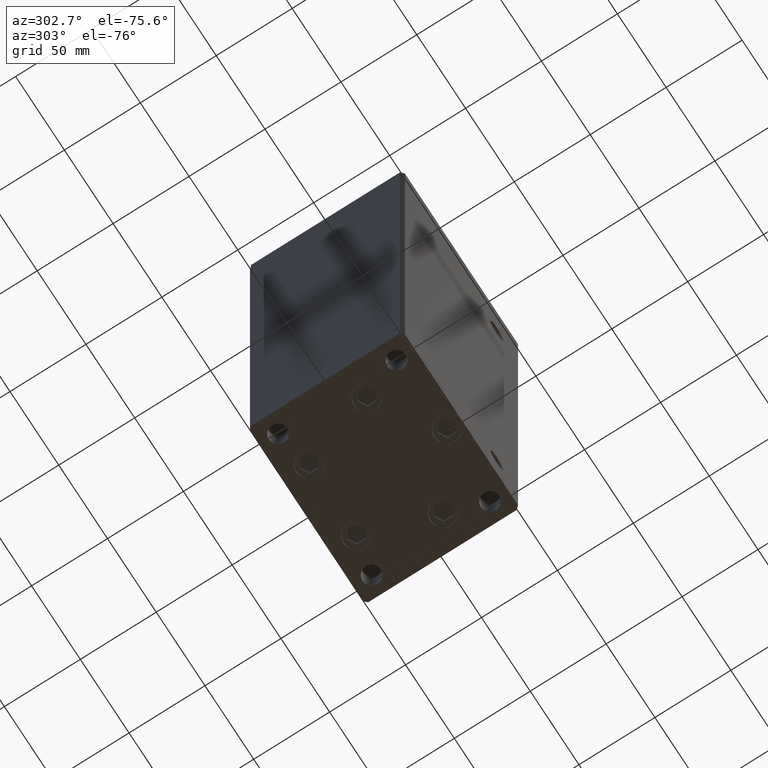
[diagram: clean part render]
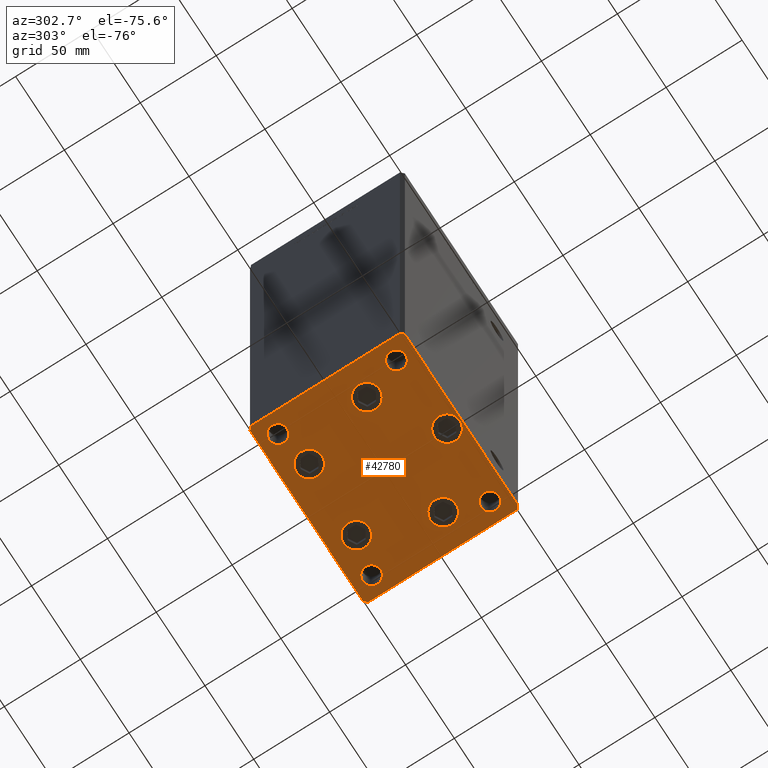
[diagram: same view with one face highlighted and labeled with its STEP entity id]
A machine part, auxiliary view. The second image highlights one B-rep face of the part: STEP entity #42780.
In plain terms, the highlighted planar face has unit normal (0, 0, -1).
Its self-contained STEP definition (entity closure, byte-faithful):
#94 = DIRECTION ( 'NONE',  ( 1.000000000000000000, 0.000000000000000000, 0.000000000000000000 ) ) ;
#144 = DIRECTION ( 'NONE',  ( 1.000000000000000000, 0.000000000000000000, 0.000000000000000000 ) ) ;
#242 = LINE ( 'NONE', #23968, #33316 ) ;
#613 = FACE_BOUND ( 'NONE', #49933, .T. ) ;
#821 = EDGE_CURVE ( 'NONE', #7203, #12091, #4376, .T. ) ;
#946 = EDGE_LOOP ( 'NONE', ( #30106, #27757 ) ) ;
#1083 = EDGE_CURVE ( 'NONE', #36989, #16783, #38334, .T. ) ;
#1563 = AXIS2_PLACEMENT_3D ( 'NONE', #32510, #11959, #37238 ) ;
#1606 = EDGE_CURVE ( 'NONE', #2000, #35267, #38763, .T. ) ;
#1685 = ORIENTED_EDGE ( 'NONE', *, *, #20464, .T. ) ;
#1954 = AXIS2_PLACEMENT_3D ( 'NONE', #4406, #20764, #45001 ) ;
#2000 = VERTEX_POINT ( 'NONE', #33048 ) ;
#2300 = DIRECTION ( 'NONE',  ( 1.000000000000000000, 0.000000000000000000, 0.000000000000000000 ) ) ;
#2529 = EDGE_LOOP ( 'NONE', ( #5873, #36557 ) ) ;
#2632 = DIRECTION ( 'NONE',  ( 0.000000000000000000, -0.000000000000000000, -1.000000000000000000 ) ) ;
#2794 = VERTEX_POINT ( 'NONE', #15508 ) ;
#2953 = EDGE_CURVE ( 'NONE', #16673, #2000, #242, .T. ) ;
#3067 = CARTESIAN_POINT ( 'NONE',  ( 15.69288941894910927, 33.71875000000000711, 0.000000000000000000 ) ) ;
#3167 = CIRCLE ( 'NONE', #49465, 8.500000000000000000 ) ;
#3388 = EDGE_LOOP ( 'NONE', ( #15132, #15224 ) ) ;
#3528 = VERTEX_POINT ( 'NONE', #45167 ) ;
#4087 = CARTESIAN_POINT ( 'NONE',  ( -24.19288941894912170, 33.71875000000000000, 0.000000000000000000 ) ) ;
#4376 = LINE ( 'NONE', #47905, #32451 ) ;
#4406 = CARTESIAN_POINT ( 'NONE',  ( 48.00000000000000000, -38.99999999999999289, 0.000000000000000000 ) ) ;
#4553 = FACE_BOUND ( 'NONE', #24349, .T. ) ;
#4941 = CARTESIAN_POINT ( 'NONE',  ( 60.00000000000001421, -48.99999999999999289, 0.000000000000000000 ) ) ;
#5091 = ORIENTED_EDGE ( 'NONE', *, *, #18093, .T. ) ;
#5162 = EDGE_CURVE ( 'NONE', #32175, #3528, #14898, .T. ) ;
#5488 = CIRCLE ( 'NONE', #51815, 8.500000000000000000 ) ;
#5800 = CARTESIAN_POINT ( 'NONE',  ( -30.62657522565562829, -13.83333333333333748, 0.000000000000000000 ) ) ;
#5873 = ORIENTED_EDGE ( 'NONE', *, *, #31709, .T. ) ;
#6146 = DIRECTION ( 'NONE',  ( 0.000000000000000000, -0.000000000000000000, -1.000000000000000000 ) ) ;
#6353 = AXIS2_PLACEMENT_3D ( 'NONE', #13253, #20395, #94 ) ;
#6429 = LINE ( 'NONE', #26469, #35034 ) ;
#6457 = VERTEX_POINT ( 'NONE', #5800 ) ;
#6487 = DIRECTION ( 'NONE',  ( -0.7071067811865451302, -0.7071067811865500152, 0.000000000000000000 ) ) ;
#6583 = CARTESIAN_POINT ( 'NONE',  ( 47.62657522565562118, -13.83333333333332682, 0.000000000000000000 ) ) ;
#6837 = LINE ( 'NONE', #51114, #46201 ) ;
#7203 = VERTEX_POINT ( 'NONE', #32706 ) ;
#7640 = LINE ( 'NONE', #23719, #37068 ) ;
#8053 = DIRECTION ( 'NONE',  ( 0.000000000000000000, -0.000000000000000000, -1.000000000000000000 ) ) ;
#8071 = ORIENTED_EDGE ( 'NONE', *, *, #41163, .T. ) ;
#8150 = EDGE_CURVE ( 'NONE', #43732, #48338, #19201, .T. ) ;
#8251 = ORIENTED_EDGE ( 'NONE', *, *, #821, .T. ) ;
#8264 = CIRCLE ( 'NONE', #29285, 8.499999999999992895 ) ;
#8270 = AXIS2_PLACEMENT_3D ( 'NONE', #14421, #38662, #34178 ) ;
#8562 = CARTESIAN_POINT ( 'NONE',  ( -57.99999999999999289, 50.99999999999997868, 0.000000000000000000 ) ) ;
#8586 = CARTESIAN_POINT ( 'NONE',  ( 41.99999999999999289, -38.99999999999999289, 0.000000000000000000 ) ) ;
#8843 = DIRECTION ( 'NONE',  ( 1.000000000000000000, 0.000000000000000000, 0.000000000000000000 ) ) ;
#8846 = ORIENTED_EDGE ( 'NONE', *, *, #5162, .T. ) ;
#8967 = EDGE_CURVE ( 'NONE', #29447, #10231, #50372, .T. ) ;
#9168 = CIRCLE ( 'NONE', #45363, 6.000000000000005329 ) ;
#9315 = AXIS2_PLACEMENT_3D ( 'NONE', #47584, #11455, #22288 ) ;
#9582 = DIRECTION ( 'NONE',  ( 1.000000000000000000, 0.000000000000000000, 0.000000000000000000 ) ) ;
#10167 = EDGE_CURVE ( 'NONE', #37859, #10267, #15053, .T. ) ;
#10180 = CARTESIAN_POINT ( 'NONE',  ( -41.99999999999999289, 39.00000000000000000, 0.000000000000000000 ) ) ;
#10231 = VERTEX_POINT ( 'NONE', #16451 ) ;
#10267 = VERTEX_POINT ( 'NONE', #48334 ) ;
#10856 = AXIS2_PLACEMENT_3D ( 'NONE', #51062, #46854, #2300 ) ;
#11139 = DIRECTION ( 'NONE',  ( 1.000000000000000000, 0.000000000000000000, 0.000000000000000000 ) ) ;
#11183 = ORIENTED_EDGE ( 'NONE', *, *, #23331, .T. ) ;
#11455 = DIRECTION ( 'NONE',  ( -0.000000000000000000, 0.000000000000000000, 1.000000000000000000 ) ) ;
#11461 = EDGE_CURVE ( 'NONE', #35605, #45401, #3167, .T. ) ;
#11543 = DIRECTION ( 'NONE',  ( 1.000000000000000000, 0.000000000000000000, 0.000000000000000000 ) ) ;
#11622 = ORIENTED_EDGE ( 'NONE', *, *, #21176, .F. ) ;
#11841 = EDGE_CURVE ( 'NONE', #40612, #7203, #33526, .T. ) ;
#11959 = DIRECTION ( 'NONE',  ( 0.000000000000000000, -0.000000000000000000, -1.000000000000000000 ) ) ;
#12091 = VERTEX_POINT ( 'NONE', #28735 ) ;
#12337 = ORIENTED_EDGE ( 'NONE', *, *, #14739, .T. ) ;
#12745 = EDGE_CURVE ( 'NONE', #3528, #32175, #8264, .T. ) ;
#12768 = VERTEX_POINT ( 'NONE', #8586 ) ;
#12904 = AXIS2_PLACEMENT_3D ( 'NONE', #29973, #34453, #42109 ) ;
#12990 = FACE_OUTER_BOUND ( 'NONE', #43121, .T. ) ;
#13187 = CARTESIAN_POINT ( 'NONE',  ( -48.00000000000000000, 39.00000000000000000, 0.000000000000000000 ) ) ;
#13253 = CARTESIAN_POINT ( 'NONE',  ( 0.000000000000000000, 0.000000000000000000, 0.000000000000000000 ) ) ;
#13279 = CARTESIAN_POINT ( 'NONE',  ( 8.500000000000005329, -41.50000000000000000, 0.000000000000000000 ) ) ;
#13838 = CARTESIAN_POINT ( 'NONE',  ( 39.12657522565562829, -13.83333333333332860, 0.000000000000000000 ) ) ;
#13974 = DIRECTION ( 'NONE',  ( -0.000000000000000000, 0.000000000000000000, 1.000000000000000000 ) ) ;
#14295 = DIRECTION ( 'NONE',  ( -7.080503983578803823E-16, 1.000000000000000000, 0.000000000000000000 ) ) ;
#14421 = CARTESIAN_POINT ( 'NONE',  ( 48.00000000000000000, 38.99999999999999289, 0.000000000000000000 ) ) ;
#14694 = EDGE_CURVE ( 'NONE', #29206, #43205, #26825, .T. ) ;
#14739 = EDGE_CURVE ( 'NONE', #12091, #22608, #6837, .T. ) ;
#14898 = CIRCLE ( 'NONE', #15743, 8.499999999999992895 ) ;
#15053 = CIRCLE ( 'NONE', #1563, 6.000000000000005329 ) ;
#15132 = ORIENTED_EDGE ( 'NONE', *, *, #8967, .F. ) ;
#15224 = ORIENTED_EDGE ( 'NONE', *, *, #49324, .F. ) ;
#15508 = CARTESIAN_POINT ( 'NONE',  ( 54.00000000000000711, -38.99999999999999289, 0.000000000000000000 ) ) ;
#15522 = CARTESIAN_POINT ( 'NONE',  ( -39.12657522565562829, -13.83333333333333925, 0.000000000000000000 ) ) ;
#15652 = DIRECTION ( 'NONE',  ( 0.000000000000000000, -0.000000000000000000, -1.000000000000000000 ) ) ;
#15721 = EDGE_CURVE ( 'NONE', #12768, #2794, #9168, .T. ) ;
#15743 = AXIS2_PLACEMENT_3D ( 'NONE', #30654, #38831, #11139 ) ;
#15916 = DIRECTION ( 'NONE',  ( 1.000000000000000000, 0.000000000000000000, 0.000000000000000000 ) ) ;
#16027 = EDGE_CURVE ( 'NONE', #10267, #37859, #19318, .T. ) ;
#16451 = CARTESIAN_POINT ( 'NONE',  ( 41.99999999999999289, 38.99999999999999289, 0.000000000000000000 ) ) ;
#16463 = DIRECTION ( 'NONE',  ( 1.000000000000000000, 0.000000000000000000, 0.000000000000000000 ) ) ;
#16668 = CARTESIAN_POINT ( 'NONE',  ( -57.99999999999997868, -51.00000000000001421, 0.000000000000000000 ) ) ;
#16673 = VERTEX_POINT ( 'NONE', #18658 ) ;
#16710 = FACE_BOUND ( 'NONE', #33025, .T. ) ;
#16783 = VERTEX_POINT ( 'NONE', #50269 ) ;
#17050 = EDGE_LOOP ( 'NONE', ( #31271, #20878 ) ) ;
#17855 = ORIENTED_EDGE ( 'NONE', *, *, #44393, .T. ) ;
#17944 = CIRCLE ( 'NONE', #1954, 6.000000000000005329 ) ;
#18093 = EDGE_CURVE ( 'NONE', #16783, #36989, #42096, .T. ) ;
#18403 = AXIS2_PLACEMENT_3D ( 'NONE', #13187, #13974, #33996 ) ;
#18658 = CARTESIAN_POINT ( 'NONE',  ( -60.00000000000000000, 48.99999999999995737, 0.000000000000000000 ) ) ;
#18732 = DIRECTION ( 'NONE',  ( 1.000000000000000000, 0.000000000000000000, 0.000000000000000000 ) ) ;
#19021 = VECTOR ( 'NONE', #6487, 1000.000000000000114 ) ;
#19094 = DIRECTION ( 'NONE',  ( 1.000000000000000000, 1.196361017915039486E-16, 0.000000000000000000 ) ) ;
#19201 = CIRCLE ( 'NONE', #45251, 8.500000000000000000 ) ;
#19318 = CIRCLE ( 'NONE', #10856, 6.000000000000005329 ) ;
#19728 = EDGE_LOOP ( 'NONE', ( #44627, #8071 ) ) ;
#19992 = DIRECTION ( 'NONE',  ( 0.000000000000000000, -0.000000000000000000, -1.000000000000000000 ) ) ;
#20284 = DIRECTION ( 'NONE',  ( 0.000000000000000000, -1.000000000000000000, 0.000000000000000000 ) ) ;
#20395 = DIRECTION ( 'NONE',  ( -0.000000000000000000, 0.000000000000000000, 1.000000000000000000 ) ) ;
#20464 = EDGE_CURVE ( 'NONE', #33352, #40612, #7640, .T. ) ;
#20764 = DIRECTION ( 'NONE',  ( 0.000000000000000000, -0.000000000000000000, -1.000000000000000000 ) ) ;
#20878 = ORIENTED_EDGE ( 'NONE', *, *, #15721, .T. ) ;
#21176 = EDGE_CURVE ( 'NONE', #43205, #29206, #36240, .T. ) ;
#21274 = DIRECTION ( 'NONE',  ( 1.000000000000000000, 0.000000000000000000, 0.000000000000000000 ) ) ;
#22288 = DIRECTION ( 'NONE',  ( 1.000000000000000000, 0.000000000000000000, 0.000000000000000000 ) ) ;
#22608 = VERTEX_POINT ( 'NONE', #8562 ) ;
#22647 = DIRECTION ( 'NONE',  ( 1.000000000000000000, 0.000000000000000000, 0.000000000000000000 ) ) ;
#22903 = CARTESIAN_POINT ( 'NONE',  ( -24.19288941894912170, 33.71875000000000000, 0.000000000000000000 ) ) ;
#23331 = EDGE_CURVE ( 'NONE', #45401, #35605, #43041, .T. ) ;
#23399 = VECTOR ( 'NONE', #14295, 1000.000000000000000 ) ;
#23719 = CARTESIAN_POINT ( 'NONE',  ( 58.00000000000000000, -51.00000000000000711, 0.000000000000000000 ) ) ;
#23968 = CARTESIAN_POINT ( 'NONE',  ( -60.00000000000000000, 48.99999999999995737, 0.000000000000000000 ) ) ;
#24349 = EDGE_LOOP ( 'NONE', ( #39655, #8846 ) ) ;
#24409 = AXIS2_PLACEMENT_3D ( 'NONE', #49124, #44902, #32514 ) ;
#24428 = DIRECTION ( 'NONE',  ( -0.7071067811865487940, 0.7071067811865463515, 0.000000000000000000 ) ) ;
#24861 = FACE_BOUND ( 'NONE', #2529, .T. ) ;
#25230 = CARTESIAN_POINT ( 'NONE',  ( 48.00000000000000000, 38.99999999999999289, 0.000000000000000000 ) ) ;
#25407 = ORIENTED_EDGE ( 'NONE', *, *, #43267, .T. ) ;
#25817 = CARTESIAN_POINT ( 'NONE',  ( -54.00000000000000711, 39.00000000000000000, 0.000000000000000000 ) ) ;
#26116 = DIRECTION ( 'NONE',  ( 0.7071067811865474617, -0.7071067811865474617, 0.000000000000000000 ) ) ;
#26267 = LINE ( 'NONE', #29692, #19021 ) ;
#26333 = CARTESIAN_POINT ( 'NONE',  ( 32.69288941894911460, 33.71875000000000711, 0.000000000000000000 ) ) ;
#26469 = CARTESIAN_POINT ( 'NONE',  ( -57.99999999999997868, -51.00000000000001421, 0.000000000000000000 ) ) ;
#26825 = CIRCLE ( 'NONE', #18403, 6.000000000000005329 ) ;
#27757 = ORIENTED_EDGE ( 'NONE', *, *, #10167, .T. ) ;
#27887 = CARTESIAN_POINT ( 'NONE',  ( -47.62657522565562829, -13.83333333333333925, 0.000000000000000000 ) ) ;
#28735 = CARTESIAN_POINT ( 'NONE',  ( 57.99999999999993605, 51.00000000000000711, 0.000000000000000000 ) ) ;
#29206 = VERTEX_POINT ( 'NONE', #25817 ) ;
#29285 = AXIS2_PLACEMENT_3D ( 'NONE', #13838, #45215, #8843 ) ;
#29447 = VERTEX_POINT ( 'NONE', #37027 ) ;
#29604 = ORIENTED_EDGE ( 'NONE', *, *, #14694, .F. ) ;
#29692 = CARTESIAN_POINT ( 'NONE',  ( -57.99999999999999289, 50.99999999999997868, 0.000000000000000000 ) ) ;
#29973 = CARTESIAN_POINT ( 'NONE',  ( 24.19288941894911460, 33.71875000000000711, 0.000000000000000000 ) ) ;
#30106 = ORIENTED_EDGE ( 'NONE', *, *, #16027, .T. ) ;
#30654 = CARTESIAN_POINT ( 'NONE',  ( 39.12657522565562829, -13.83333333333332860, 0.000000000000000000 ) ) ;
#30665 = VERTEX_POINT ( 'NONE', #27887 ) ;
#30761 = EDGE_CURVE ( 'NONE', #2794, #12768, #17944, .T. ) ;
#31249 = AXIS2_PLACEMENT_3D ( 'NONE', #4087, #8053, #144 ) ;
#31271 = ORIENTED_EDGE ( 'NONE', *, *, #30761, .T. ) ;
#31709 = EDGE_CURVE ( 'NONE', #48338, #43732, #49940, .T. ) ;
#31727 = CARTESIAN_POINT ( 'NONE',  ( -32.69288941894912170, 33.71875000000000000, 0.000000000000000000 ) ) ;
#32175 = VERTEX_POINT ( 'NONE', #6583 ) ;
#32392 = CIRCLE ( 'NONE', #34920, 8.500000000000000000 ) ;
#32451 = VECTOR ( 'NONE', #24428, 1000.000000000000000 ) ;
#32482 = CARTESIAN_POINT ( 'NONE',  ( 24.19288941894911460, 33.71875000000000711, 0.000000000000000000 ) ) ;
#32510 = CARTESIAN_POINT ( 'NONE',  ( -48.00000000000000000, -39.00000000000000000, 0.000000000000000000 ) ) ;
#32514 = DIRECTION ( 'NONE',  ( 1.000000000000000000, 0.000000000000000000, 0.000000000000000000 ) ) ;
#32706 = CARTESIAN_POINT ( 'NONE',  ( 59.99999999999994316, 49.00000000000000000, 0.000000000000000000 ) ) ;
#32766 = FACE_BOUND ( 'NONE', #17050, .T. ) ;
#33025 = EDGE_LOOP ( 'NONE', ( #5091, #34584 ) ) ;
#33048 = CARTESIAN_POINT ( 'NONE',  ( -60.00000000000000000, -49.00000000000000000, 0.000000000000000000 ) ) ;
#33119 = EDGE_LOOP ( 'NONE', ( #11622, #29604 ) ) ;
#33316 = VECTOR ( 'NONE', #20284, 1000.000000000000000 ) ;
#33352 = VERTEX_POINT ( 'NONE', #50487 ) ;
#33526 = LINE ( 'NONE', #45661, #23399 ) ;
#33874 = ORIENTED_EDGE ( 'NONE', *, *, #11461, .T. ) ;
#33996 = DIRECTION ( 'NONE',  ( 1.000000000000000000, 0.000000000000000000, 0.000000000000000000 ) ) ;
#34178 = DIRECTION ( 'NONE',  ( 1.000000000000000000, 0.000000000000000000, 0.000000000000000000 ) ) ;
#34453 = DIRECTION ( 'NONE',  ( 0.000000000000000000, -0.000000000000000000, -1.000000000000000000 ) ) ;
#34584 = ORIENTED_EDGE ( 'NONE', *, *, #1083, .T. ) ;
#34618 = ORIENTED_EDGE ( 'NONE', *, *, #1606, .T. ) ;
#34920 = AXIS2_PLACEMENT_3D ( 'NONE', #15522, #19992, #11543 ) ;
#35034 = VECTOR ( 'NONE', #19094, 1000.000000000000000 ) ;
#35267 = VERTEX_POINT ( 'NONE', #16668 ) ;
#35605 = VERTEX_POINT ( 'NONE', #44012 ) ;
#35953 = DIRECTION ( 'NONE',  ( 0.000000000000000000, -0.000000000000000000, -1.000000000000000000 ) ) ;
#36240 = CIRCLE ( 'NONE', #9315, 6.000000000000005329 ) ;
#36557 = ORIENTED_EDGE ( 'NONE', *, *, #8150, .T. ) ;
#36989 = VERTEX_POINT ( 'NONE', #13279 ) ;
#37027 = CARTESIAN_POINT ( 'NONE',  ( 54.00000000000000711, 38.99999999999999289, 0.000000000000000000 ) ) ;
#37068 = VECTOR ( 'NONE', #39274, 1000.000000000000114 ) ;
#37238 = DIRECTION ( 'NONE',  ( 1.000000000000000000, 0.000000000000000000, 0.000000000000000000 ) ) ;
#37859 = VERTEX_POINT ( 'NONE', #39676 ) ;
#37878 = ORIENTED_EDGE ( 'NONE', *, *, #11841, .T. ) ;
#38304 = EDGE_CURVE ( 'NONE', #30665, #6457, #5488, .T. ) ;
#38334 = CIRCLE ( 'NONE', #45942, 8.500000000000000000 ) ;
#38662 = DIRECTION ( 'NONE',  ( -0.000000000000000000, 0.000000000000000000, 1.000000000000000000 ) ) ;
#38750 = CARTESIAN_POINT ( 'NONE',  ( 48.00000000000000000, -38.99999999999999289, 0.000000000000000000 ) ) ;
#38763 = LINE ( 'NONE', #45886, #49286 ) ;
#38831 = DIRECTION ( 'NONE',  ( 0.000000000000000000, -0.000000000000000000, -1.000000000000000000 ) ) ;
#39235 = DIRECTION ( 'NONE',  ( 0.000000000000000000, -0.000000000000000000, -1.000000000000000000 ) ) ;
#39274 = DIRECTION ( 'NONE',  ( 0.7071067811865474617, 0.7071067811865474617, 0.000000000000000000 ) ) ;
#39354 = AXIS2_PLACEMENT_3D ( 'NONE', #25230, #41829, #21274 ) ;
#39404 = CARTESIAN_POINT ( 'NONE',  ( 5.082284216461515748E-15, -41.50000000000000000, 0.000000000000000000 ) ) ;
#39655 = ORIENTED_EDGE ( 'NONE', *, *, #12745, .T. ) ;
#39676 = CARTESIAN_POINT ( 'NONE',  ( -54.00000000000000711, -39.00000000000000000, 0.000000000000000000 ) ) ;
#40612 = VERTEX_POINT ( 'NONE', #4941 ) ;
#41053 = CIRCLE ( 'NONE', #39354, 6.000000000000005329 ) ;
#41163 = EDGE_CURVE ( 'NONE', #6457, #30665, #32392, .T. ) ;
#41211 = FACE_BOUND ( 'NONE', #3388, .T. ) ;
#41829 = DIRECTION ( 'NONE',  ( -0.000000000000000000, 0.000000000000000000, 1.000000000000000000 ) ) ;
#42096 = CIRCLE ( 'NONE', #24409, 8.500000000000000000 ) ;
#42109 = DIRECTION ( 'NONE',  ( 1.000000000000000000, 0.000000000000000000, 0.000000000000000000 ) ) ;
#42780 = ADVANCED_FACE ( 'NONE', ( #613, #24861, #4553, #16710, #49115, #41211, #32766, #48853, #12990, #49371 ), #44373, .T. ) ;
#42964 = DIRECTION ( 'NONE',  ( -1.000000000000000000, -2.392722035830079958E-16, 0.000000000000000000 ) ) ;
#43041 = CIRCLE ( 'NONE', #31249, 8.500000000000000000 ) ;
#43121 = EDGE_LOOP ( 'NONE', ( #34618, #17855, #1685, #37878, #8251, #12337, #25407, #45798 ) ) ;
#43205 = VERTEX_POINT ( 'NONE', #10180 ) ;
#43267 = EDGE_CURVE ( 'NONE', #22608, #16673, #26267, .T. ) ;
#43732 = VERTEX_POINT ( 'NONE', #26333 ) ;
#44012 = CARTESIAN_POINT ( 'NONE',  ( -15.69288941894911993, 33.71875000000000000, 0.000000000000000000 ) ) ;
#44373 = PLANE ( 'NONE',  #6353 ) ;
#44393 = EDGE_CURVE ( 'NONE', #35267, #33352, #6429, .T. ) ;
#44627 = ORIENTED_EDGE ( 'NONE', *, *, #38304, .T. ) ;
#44902 = DIRECTION ( 'NONE',  ( 0.000000000000000000, -0.000000000000000000, -1.000000000000000000 ) ) ;
#45001 = DIRECTION ( 'NONE',  ( 1.000000000000000000, 0.000000000000000000, 0.000000000000000000 ) ) ;
#45167 = CARTESIAN_POINT ( 'NONE',  ( 30.62657522565563184, -13.83333333333332860, 0.000000000000000000 ) ) ;
#45215 = DIRECTION ( 'NONE',  ( 0.000000000000000000, -0.000000000000000000, -1.000000000000000000 ) ) ;
#45251 = AXIS2_PLACEMENT_3D ( 'NONE', #32482, #15652, #15916 ) ;
#45363 = AXIS2_PLACEMENT_3D ( 'NONE', #38750, #2632, #18732 ) ;
#45401 = VERTEX_POINT ( 'NONE', #31727 ) ;
#45661 = CARTESIAN_POINT ( 'NONE',  ( 60.00000000000001421, -48.99999999999999289, 0.000000000000000000 ) ) ;
#45703 = CARTESIAN_POINT ( 'NONE',  ( -39.12657522565562829, -13.83333333333333925, 0.000000000000000000 ) ) ;
#45798 = ORIENTED_EDGE ( 'NONE', *, *, #2953, .T. ) ;
#45886 = CARTESIAN_POINT ( 'NONE',  ( -60.00000000000000000, -49.00000000000000000, 0.000000000000000000 ) ) ;
#45942 = AXIS2_PLACEMENT_3D ( 'NONE', #39404, #35953, #16463 ) ;
#46201 = VECTOR ( 'NONE', #42964, 1000.000000000000000 ) ;
#46854 = DIRECTION ( 'NONE',  ( 0.000000000000000000, -0.000000000000000000, -1.000000000000000000 ) ) ;
#47584 = CARTESIAN_POINT ( 'NONE',  ( -48.00000000000000000, 39.00000000000000000, 0.000000000000000000 ) ) ;
#47905 = CARTESIAN_POINT ( 'NONE',  ( 59.99999999999994316, 49.00000000000000000, 0.000000000000000000 ) ) ;
#48334 = CARTESIAN_POINT ( 'NONE',  ( -41.99999999999999289, -39.00000000000000000, 0.000000000000000000 ) ) ;
#48338 = VERTEX_POINT ( 'NONE', #3067 ) ;
#48853 = FACE_BOUND ( 'NONE', #33119, .T. ) ;
#49115 = FACE_BOUND ( 'NONE', #19728, .T. ) ;
#49124 = CARTESIAN_POINT ( 'NONE',  ( 5.082284216461515748E-15, -41.50000000000000000, 0.000000000000000000 ) ) ;
#49286 = VECTOR ( 'NONE', #26116, 1000.000000000000114 ) ;
#49324 = EDGE_CURVE ( 'NONE', #10231, #29447, #41053, .T. ) ;
#49371 = FACE_BOUND ( 'NONE', #946, .T. ) ;
#49465 = AXIS2_PLACEMENT_3D ( 'NONE', #22903, #39235, #22647 ) ;
#49933 = EDGE_LOOP ( 'NONE', ( #11183, #33874 ) ) ;
#49940 = CIRCLE ( 'NONE', #12904, 8.500000000000000000 ) ;
#50269 = CARTESIAN_POINT ( 'NONE',  ( -8.499999999999994671, -41.50000000000000000, 0.000000000000000000 ) ) ;
#50372 = CIRCLE ( 'NONE', #8270, 6.000000000000005329 ) ;
#50487 = CARTESIAN_POINT ( 'NONE',  ( 58.00000000000000000, -51.00000000000000711, 0.000000000000000000 ) ) ;
#51062 = CARTESIAN_POINT ( 'NONE',  ( -48.00000000000000000, -39.00000000000000000, 0.000000000000000000 ) ) ;
#51114 = CARTESIAN_POINT ( 'NONE',  ( 57.99999999999993605, 51.00000000000000711, 0.000000000000000000 ) ) ;
#51815 = AXIS2_PLACEMENT_3D ( 'NONE', #45703, #6146, #9582 ) ;